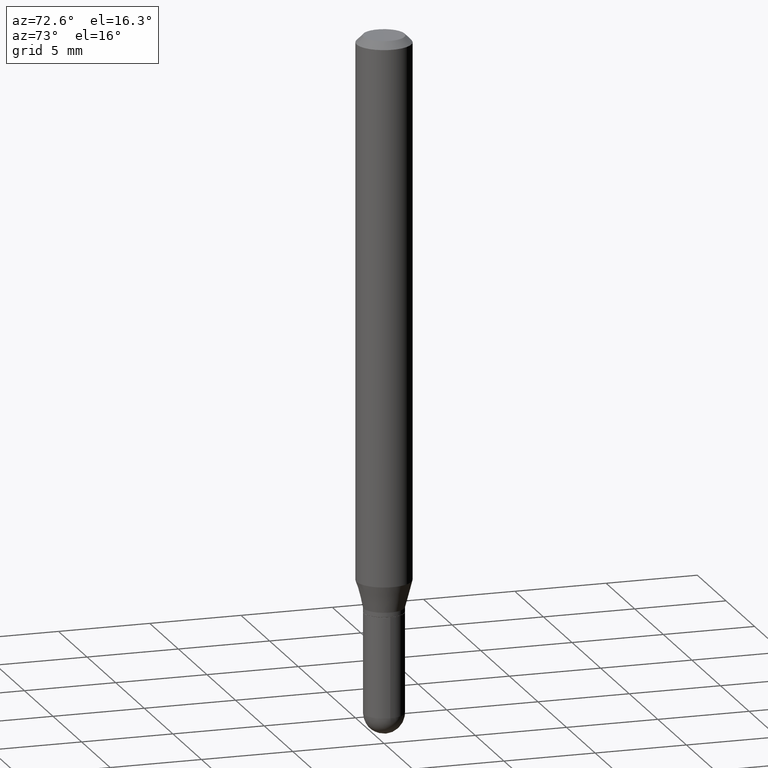
[diagram: clean part render]
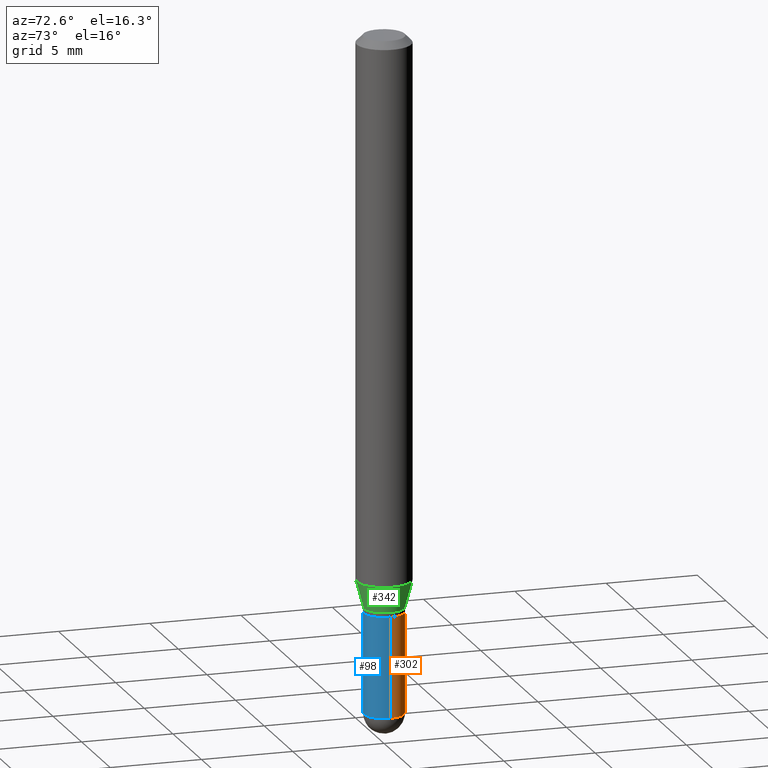
[diagram: same view with three faces highlighted in distinct colors, each labeled with its STEP entity id]
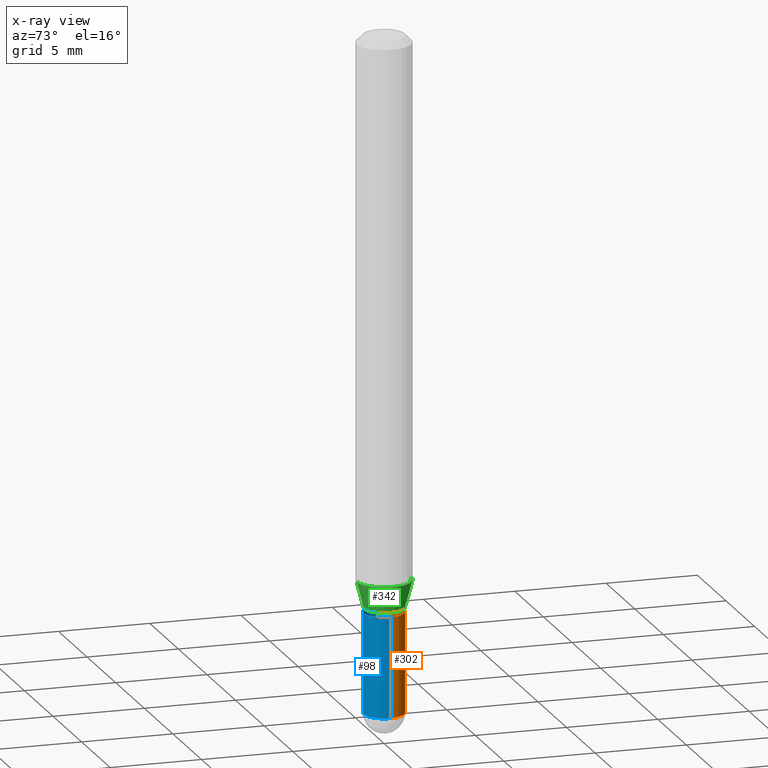
[diagram: x-ray of the same camera — body ghosted, the three highlighted faces saturated]
A machine part, auxiliary view with three faces highlighted in distinct colors.
The next image is the same camera in x-ray (body ghosted, the three faces saturated) — at least one of them is partly hidden behind the body in this view.
Their STEP definitions:

[orange] entity #302 — the highlighted cylindrical surface (edge-blend (fillet) strip) has radius 1.0998 mm, axis along (-0, 0, 1).
#2 = DIRECTION ( 'NONE',  ( -2.445468806185136597E-29, 3.491481338843145583E-15, 1.000000000000000000 ) ) ;
#16 = CARTESIAN_POINT ( 'NONE',  ( 0.04330000000000000515, -3.023622839438154129E-16, 2.111384543919640277E-30 ) ) ;
#18 = EDGE_CURVE ( 'NONE', #290, #242, #210, .T. ) ;
#43 = CARTESIAN_POINT ( 'NONE',  ( 3.023333085086683703E-29, -4.316518379211780118E-15, -1.236299999999999955 ) ) ;
#51 = CIRCLE ( 'NONE', #238, 0.04329999999999999127 ) ;
#85 = VECTOR ( 'NONE', #414, 39.37007874015748143 ) ;
#101 = VERTEX_POINT ( 'NONE', #460 ) ;
#106 = LINE ( 'NONE', #180, #85 ) ;
#114 = EDGE_CURVE ( 'NONE', #101, #446, #106, .T. ) ;
#123 = CARTESIAN_POINT ( 'NONE',  ( -0.04329999999999999127, -4.386806229557427606E-15, -1.236299999999999955 ) ) ;
#146 = ORIENTED_EDGE ( 'NONE', *, *, #470, .F. ) ;
#153 = AXIS2_PLACEMENT_3D ( 'NONE', #189, #391, #511 ) ;
#156 = ORIENTED_EDGE ( 'NONE', *, *, #330, .F. ) ;
#165 = CIRCLE ( 'NONE', #153, 0.04330000000000000515 ) ;
#168 = DIRECTION ( 'NONE',  ( -2.445468806185136597E-29, 3.491481338843145583E-15, 1.000000000000000000 ) ) ;
#180 = CARTESIAN_POINT ( 'NONE',  ( -0.04330000000000000515, 3.076650045841234171E-16, -2.129898894080374053E-30 ) ) ;
#182 = AXIS2_PLACEMENT_3D ( 'NONE', #201, #2, #395 ) ;
#189 = CARTESIAN_POINT ( 'NONE',  ( 3.552777081625765848E-29, -5.072424089071321929E-15, -1.452799999999999869 ) ) ;
#198 = AXIS2_PLACEMENT_3D ( 'NONE', #333, #491, #294 ) ;
#201 = CARTESIAN_POINT ( 'NONE',  ( 0.000000000000000000, 0.000000000000000000, 0.000000000000000000 ) ) ;
#210 = CIRCLE ( 'NONE', #198, 0.04330000000000000515 ) ;
#222 = CARTESIAN_POINT ( 'NONE',  ( 0.04329999999999999127, -4.618880663155595580E-15, -1.236299999999999955 ) ) ;
#238 = AXIS2_PLACEMENT_3D ( 'NONE', #43, #168, #295 ) ;
#242 = VERTEX_POINT ( 'NONE', #426 ) ;
#260 = VERTEX_POINT ( 'NONE', #222 ) ;
#290 = VERTEX_POINT ( 'NONE', #358 ) ;
#294 = DIRECTION ( 'NONE',  ( 1.000000000000000000, -6.982962677686267499E-15, 0.000000000000000000 ) ) ;
#295 = DIRECTION ( 'NONE',  ( 1.000000000000000000, -6.982962677686269866E-15, 0.000000000000000000 ) ) ;
#302 = ADVANCED_FACE ( 'NONE', ( #394 ), #435, .T. ) ;
#315 = VECTOR ( 'NONE', #440, 39.37007874015748143 ) ;
#323 = ORIENTED_EDGE ( 'NONE', *, *, #419, .T. ) ;
#330 = EDGE_CURVE ( 'NONE', #290, #260, #436, .T. ) ;
#332 = ORIENTED_EDGE ( 'NONE', *, *, #18, .T. ) ;
#333 = CARTESIAN_POINT ( 'NONE',  ( 3.552777081625765848E-29, -5.072424089071321929E-15, -1.452799999999999869 ) ) ;
#358 = CARTESIAN_POINT ( 'NONE',  ( 0.04330000000000000515, -4.996833518085365697E-15, -1.452799999999999869 ) ) ;
#373 = EDGE_LOOP ( 'NONE', ( #323, #421, #146, #156, #332 ) ) ;
#391 = DIRECTION ( 'NONE',  ( -2.445468806185136597E-29, 3.491481338843145583E-15, 1.000000000000000000 ) ) ;
#394 = FACE_OUTER_BOUND ( 'NONE', #373, .T. ) ;
#395 = DIRECTION ( 'NONE',  ( 1.000000000000000000, -6.982962677686267499E-15, 4.876176775795935232E-29 ) ) ;
#414 = DIRECTION ( 'NONE',  ( -2.445468806185136877E-29, 3.491481338843145188E-15, 1.000000000000000000 ) ) ;
#419 = EDGE_CURVE ( 'NONE', #242, #101, #165, .T. ) ;
#421 = ORIENTED_EDGE ( 'NONE', *, *, #114, .T. ) ;
#426 = CARTESIAN_POINT ( 'NONE',  ( 3.076650045841589651E-16, 0.04329999999999494670, -1.452800000000000091 ) ) ;
#435 = CYLINDRICAL_SURFACE ( 'NONE', #182, 0.04330000000000000515 ) ;
#436 = LINE ( 'NONE', #16, #315 ) ;
#440 = DIRECTION ( 'NONE',  ( -2.445468806185136877E-29, 3.491481338843145188E-15, 1.000000000000000000 ) ) ;
#446 = VERTEX_POINT ( 'NONE', #123 ) ;
#460 = CARTESIAN_POINT ( 'NONE',  ( -0.04330000000000000515, -4.386806229557427606E-15, -1.452799999999999869 ) ) ;
#470 = EDGE_CURVE ( 'NONE', #260, #446, #51, .T. ) ;
#491 = DIRECTION ( 'NONE',  ( -2.445468806185136597E-29, 3.491481338843145583E-15, 1.000000000000000000 ) ) ;
#511 = DIRECTION ( 'NONE',  ( 1.000000000000000000, -6.982962677686267499E-15, 0.000000000000000000 ) ) ;

[blue] entity #98 — the highlighted cylindrical surface (edge-blend (fillet) strip) has radius 1.0998 mm, axis along (-0, 0, 1).
#16 = CARTESIAN_POINT ( 'NONE',  ( 0.04330000000000000515, -3.023622839438154129E-16, 2.111384543919640277E-30 ) ) ;
#30 = EDGE_CURVE ( 'NONE', #446, #260, #482, .T. ) ;
#47 = ORIENTED_EDGE ( 'NONE', *, *, #330, .T. ) ;
#59 = DIRECTION ( 'NONE',  ( -2.445468806185136597E-29, 3.491481338843145583E-15, 1.000000000000000000 ) ) ;
#85 = VECTOR ( 'NONE', #414, 39.37007874015748143 ) ;
#98 = ADVANCED_FACE ( 'NONE', ( #225 ), #343, .T. ) ;
#99 = EDGE_LOOP ( 'NONE', ( #212, #203, #493, #47, #305 ) ) ;
#100 = CIRCLE ( 'NONE', #450, 0.04330000000000000515 ) ;
#101 = VERTEX_POINT ( 'NONE', #460 ) ;
#104 = CARTESIAN_POINT ( 'NONE',  ( 3.552777081625765848E-29, -5.072424089071321929E-15, -1.452799999999999869 ) ) ;
#106 = LINE ( 'NONE', #180, #85 ) ;
#111 = DIRECTION ( 'NONE',  ( 1.000000000000000000, -6.982962677686267499E-15, 0.000000000000000000 ) ) ;
#114 = EDGE_CURVE ( 'NONE', #101, #446, #106, .T. ) ;
#123 = CARTESIAN_POINT ( 'NONE',  ( -0.04329999999999999127, -4.386806229557427606E-15, -1.236299999999999955 ) ) ;
#154 = DIRECTION ( 'NONE',  ( -2.445468806185136597E-29, 3.491481338843145583E-15, 1.000000000000000000 ) ) ;
#157 = DIRECTION ( 'NONE',  ( -2.445468806185136597E-29, 3.491481338843145583E-15, 1.000000000000000000 ) ) ;
#180 = CARTESIAN_POINT ( 'NONE',  ( -0.04330000000000000515, 3.076650045841234171E-16, -2.129898894080374053E-30 ) ) ;
#185 = EDGE_CURVE ( 'NONE', #459, #290, #100, .T. ) ;
#203 = ORIENTED_EDGE ( 'NONE', *, *, #214, .T. ) ;
#212 = ORIENTED_EDGE ( 'NONE', *, *, #114, .F. ) ;
#214 = EDGE_CURVE ( 'NONE', #101, #459, #308, .T. ) ;
#218 = DIRECTION ( 'NONE',  ( 1.000000000000000000, -6.982962677686269866E-15, 0.000000000000000000 ) ) ;
#222 = CARTESIAN_POINT ( 'NONE',  ( 0.04329999999999999127, -4.618880663155595580E-15, -1.236299999999999955 ) ) ;
#225 = FACE_OUTER_BOUND ( 'NONE', #99, .T. ) ;
#253 = DIRECTION ( 'NONE',  ( -2.445468806185136597E-29, 3.491481338843145583E-15, 1.000000000000000000 ) ) ;
#254 = AXIS2_PLACEMENT_3D ( 'NONE', #104, #253, #341 ) ;
#260 = VERTEX_POINT ( 'NONE', #222 ) ;
#261 = CARTESIAN_POINT ( 'NONE',  ( 0.000000000000000000, 0.000000000000000000, 0.000000000000000000 ) ) ;
#279 = CARTESIAN_POINT ( 'NONE',  ( -3.023622839437799634E-16, -0.04330000000000509136, -1.452799999999999647 ) ) ;
#290 = VERTEX_POINT ( 'NONE', #358 ) ;
#305 = ORIENTED_EDGE ( 'NONE', *, *, #30, .F. ) ;
#308 = CIRCLE ( 'NONE', #254, 0.04330000000000000515 ) ;
#315 = VECTOR ( 'NONE', #440, 39.37007874015748143 ) ;
#330 = EDGE_CURVE ( 'NONE', #290, #260, #436, .T. ) ;
#341 = DIRECTION ( 'NONE',  ( 1.000000000000000000, -6.982962677686267499E-15, 0.000000000000000000 ) ) ;
#343 = CYLINDRICAL_SURFACE ( 'NONE', #386, 0.04330000000000000515 ) ;
#358 = CARTESIAN_POINT ( 'NONE',  ( 0.04330000000000000515, -4.996833518085365697E-15, -1.452799999999999869 ) ) ;
#359 = AXIS2_PLACEMENT_3D ( 'NONE', #412, #59, #218 ) ;
#386 = AXIS2_PLACEMENT_3D ( 'NONE', #261, #154, #427 ) ;
#412 = CARTESIAN_POINT ( 'NONE',  ( 3.023333085086683703E-29, -4.316518379211780118E-15, -1.236299999999999955 ) ) ;
#414 = DIRECTION ( 'NONE',  ( -2.445468806185136877E-29, 3.491481338843145188E-15, 1.000000000000000000 ) ) ;
#427 = DIRECTION ( 'NONE',  ( 1.000000000000000000, -6.982962677686267499E-15, 4.876176775795935232E-29 ) ) ;
#436 = LINE ( 'NONE', #16, #315 ) ;
#440 = DIRECTION ( 'NONE',  ( -2.445468806185136877E-29, 3.491481338843145188E-15, 1.000000000000000000 ) ) ;
#446 = VERTEX_POINT ( 'NONE', #123 ) ;
#450 = AXIS2_PLACEMENT_3D ( 'NONE', #507, #157, #111 ) ;
#459 = VERTEX_POINT ( 'NONE', #279 ) ;
#460 = CARTESIAN_POINT ( 'NONE',  ( -0.04330000000000000515, -4.386806229557427606E-15, -1.452799999999999869 ) ) ;
#482 = CIRCLE ( 'NONE', #359, 0.04329999999999999127 ) ;
#493 = ORIENTED_EDGE ( 'NONE', *, *, #185, .T. ) ;
#507 = CARTESIAN_POINT ( 'NONE',  ( 3.552777081625765848E-29, -5.072424089071321929E-15, -1.452799999999999869 ) ) ;

[green] entity #342 — the highlighted conical surface has half-angle 15 deg.
#8 = VERTEX_POINT ( 'NONE', #12 ) ;
#12 = CARTESIAN_POINT ( 'NONE',  ( 3.636202450252602978E-16, 0.04329999999999564059, -1.226099999999999968 ) ) ;
#25 = CARTESIAN_POINT ( 'NONE',  ( 4.195754854663675961E-16, 0.05904999999999592519, -1.167320199780790491 ) ) ;
#39 = AXIS2_PLACEMENT_3D ( 'NONE', #487, #90, #97 ) ;
#44 = LINE ( 'NONE', #448, #280 ) ;
#90 = DIRECTION ( 'NONE',  ( -2.445423276255530617E-29, 3.491546540293744130E-15, 1.000000000000000000 ) ) ;
#97 = DIRECTION ( 'NONE',  ( -6.982962677686265922E-15, -1.000000000000000000, 3.154558884138878184E-15 ) ) ;
#109 = VERTEX_POINT ( 'NONE', #25 ) ;
#112 = ORIENTED_EDGE ( 'NONE', *, *, #430, .T. ) ;
#122 = DIRECTION ( 'NONE',  ( -2.445423276255530617E-29, 3.491546540293744130E-15, 1.000000000000000000 ) ) ;
#139 = FACE_OUTER_BOUND ( 'NONE', #461, .T. ) ;
#140 = ORIENTED_EDGE ( 'NONE', *, *, #346, .F. ) ;
#145 = AXIS2_PLACEMENT_3D ( 'NONE', #311, #122, #269 ) ;
#148 = EDGE_CURVE ( 'NONE', #8, #109, #351, .T. ) ;
#176 = VERTEX_POINT ( 'NONE', #387 ) ;
#244 = DIRECTION ( 'NONE',  ( -1.807323732225337239E-15, -0.2588190451025191852, 0.9659258262890687563 ) ) ;
#249 = VECTOR ( 'NONE', #425, 39.37007874015748854 ) ;
#258 = ORIENTED_EDGE ( 'NONE', *, *, #352, .F. ) ;
#269 = DIRECTION ( 'NONE',  ( -6.982962677686265922E-15, -1.000000000000000000, 3.154558884138878184E-15 ) ) ;
#280 = VECTOR ( 'NONE', #244, 39.37007874015748854 ) ;
#289 = CARTESIAN_POINT ( 'NONE',  ( 2.854591987387200469E-29, -4.075752804959620874E-15, -1.167320199780790269 ) ) ;
#293 = AXIS2_PLACEMENT_3D ( 'NONE', #289, #403, #478 ) ;
#311 = CARTESIAN_POINT ( 'NONE',  ( 2.998333479016906095E-29, -4.280985213054159645E-15, -1.226099999999999968 ) ) ;
#342 = ADVANCED_FACE ( 'NONE', ( #139 ), #502, .T. ) ;
#346 = EDGE_CURVE ( 'NONE', #176, #109, #398, .T. ) ;
#351 = LINE ( 'NONE', #462, #249 ) ;
#352 = EDGE_CURVE ( 'NONE', #476, #176, #44, .T. ) ;
#360 = CIRCLE ( 'NONE', #145, 0.04329999999999991495 ) ;
#387 = CARTESIAN_POINT ( 'NONE',  ( -4.123439461173455351E-16, -0.05905000000000407839, -1.167320199780790047 ) ) ;
#398 = CIRCLE ( 'NONE', #293, 0.05904999999999999832 ) ;
#403 = DIRECTION ( 'NONE',  ( -2.445423276255530617E-29, 3.491546540293744130E-15, 1.000000000000000000 ) ) ;
#406 = ORIENTED_EDGE ( 'NONE', *, *, #148, .T. ) ;
#407 = CARTESIAN_POINT ( 'NONE',  ( -3.023622839437847459E-16, -0.04330000000000419624, -1.226099999999999746 ) ) ;
#425 = DIRECTION ( 'NONE',  ( 1.839019923739607021E-15, 0.2588190451025259575, 0.9659258262890667579 ) ) ;
#430 = EDGE_CURVE ( 'NONE', #476, #8, #360, .T. ) ;
#448 = CARTESIAN_POINT ( 'NONE',  ( -3.023622839437847459E-16, -0.04330000000000419624, -1.226099999999999746 ) ) ;
#461 = EDGE_LOOP ( 'NONE', ( #112, #406, #140, #258 ) ) ;
#462 = CARTESIAN_POINT ( 'NONE',  ( 3.076650045841527035E-16, 0.04329999999999564059, -1.226099999999999968 ) ) ;
#476 = VERTEX_POINT ( 'NONE', #407 ) ;
#478 = DIRECTION ( 'NONE',  ( -6.982962677686265922E-15, -1.000000000000000000, 4.626330217890369336E-15 ) ) ;
#487 = CARTESIAN_POINT ( 'NONE',  ( 2.998333479016906095E-29, -4.280985213054159645E-15, -1.226099999999999968 ) ) ;
#502 = CONICAL_SURFACE ( 'NONE', #39, 0.04329999999999991495, 0.2617993877991512952 ) ;